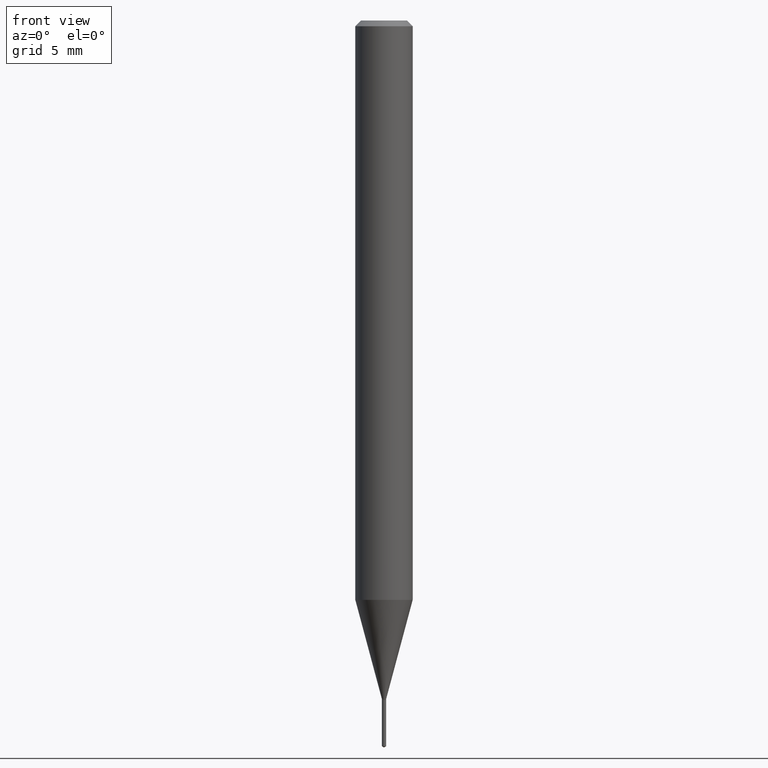
[diagram: clean part render]
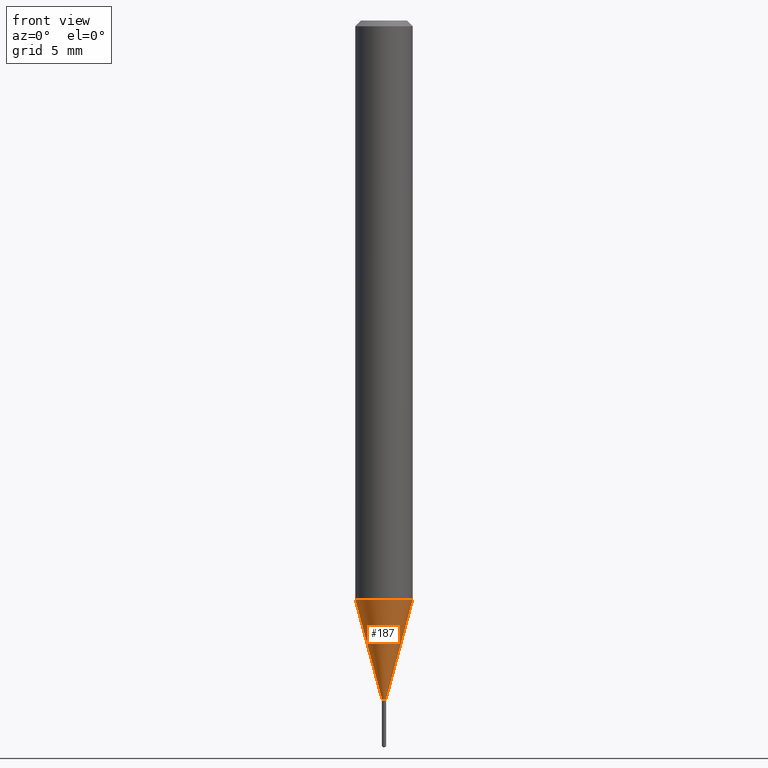
[diagram: same view with one face highlighted and labeled with its STEP entity id]
A machine part, front view. The second image highlights one B-rep face of the part: STEP entity #187.
In plain terms, the highlighted conical surface has half-angle 15 deg.
Its self-contained STEP definition (entity closure, byte-faithful):
#31 = CARTESIAN_POINT ( 'NONE',  ( 0.004349999999999999700, -4.905880429208502600E-15, -1.396399999999999864 ) ) ;
#43 = ORIENTED_EDGE ( 'NONE', *, *, #249, .T. ) ;
#45 = DIRECTION ( 'NONE',  ( -2.445468806185136597E-29, 3.491481338843145583E-15, 1.000000000000000000 ) ) ;
#59 = VECTOR ( 'NONE', #410, 39.37007874015747433 ) ;
#74 = AXIS2_PLACEMENT_3D ( 'NONE', #275, #45, #156 ) ;
#76 = VERTEX_POINT ( 'NONE', #438 ) ;
#85 = ORIENTED_EDGE ( 'NONE', *, *, #358, .F. ) ;
#142 = CONICAL_SURFACE ( 'NONE', #422, 0.004349999999999999700, 0.2617993877991500740 ) ;
#156 = DIRECTION ( 'NONE',  ( 1.000000000000000000, -6.982962677686272233E-15, 0.000000000000000000 ) ) ;
#159 = CIRCLE ( 'NONE', #403, 0.004349999999999999700 ) ;
#187 = ADVANCED_FACE ( 'NONE', ( #329 ), #142, .T. ) ;
#188 = CARTESIAN_POINT ( 'NONE',  ( -0.004349999999999999700, -4.844595932555003539E-15, -1.396399999999999864 ) ) ;
#190 = ORIENTED_EDGE ( 'NONE', *, *, #443, .F. ) ;
#219 = CARTESIAN_POINT ( 'NONE',  ( 0.05905000000000015098, -4.575086387139747161E-15, -1.192256820825982278 ) ) ;
#221 = LINE ( 'NONE', #31, #59 ) ;
#222 = DIRECTION ( 'NONE',  ( 1.000000000000000000, -6.982962677686209913E-15, 0.000000000000000000 ) ) ;
#247 = VERTEX_POINT ( 'NONE', #219 ) ;
#249 = EDGE_CURVE ( 'NONE', #485, #247, #221, .T. ) ;
#275 = CARTESIAN_POINT ( 'NONE',  ( 2.915626864291401219E-29, -4.162742441022373029E-15, -1.192256820825982278 ) ) ;
#289 = CARTESIAN_POINT ( 'NONE',  ( 3.414852640956924410E-29, -4.875504541560567649E-15, -1.396399999999999864 ) ) ;
#306 = DIRECTION ( 'NONE',  ( -2.445468806185136597E-29, 3.491481338843145583E-15, 1.000000000000000000 ) ) ;
#308 = CARTESIAN_POINT ( 'NONE',  ( 3.414852640956924410E-29, -4.875504541560567649E-15, -1.396399999999999864 ) ) ;
#329 = FACE_OUTER_BOUND ( 'NONE', #425, .T. ) ;
#332 = CIRCLE ( 'NONE', #74, 0.05905000000000014404 ) ;
#337 = EDGE_CURVE ( 'NONE', #76, #485, #159, .T. ) ;
#339 = DIRECTION ( 'NONE',  ( -0.2588190451025213501, 5.211531920934551042E-15, 0.9659258262890682012 ) ) ;
#346 = CARTESIAN_POINT ( 'NONE',  ( -0.05905000000000015098, -3.743166955556031959E-15, -1.192256820825982278 ) ) ;
#350 = LINE ( 'NONE', #188, #447 ) ;
#358 = EDGE_CURVE ( 'NONE', #388, #247, #332, .T. ) ;
#388 = VERTEX_POINT ( 'NONE', #346 ) ;
#403 = AXIS2_PLACEMENT_3D ( 'NONE', #308, #306, #457 ) ;
#405 = DIRECTION ( 'NONE',  ( -2.445468806185136597E-29, 3.491481338843145583E-15, 1.000000000000000000 ) ) ;
#410 = DIRECTION ( 'NONE',  ( 0.2588190451025213501, 1.565188264969621968E-15, 0.9659258262890682012 ) ) ;
#422 = AXIS2_PLACEMENT_3D ( 'NONE', #289, #405, #222 ) ;
#425 = EDGE_LOOP ( 'NONE', ( #190, #473, #43, #85 ) ) ;
#438 = CARTESIAN_POINT ( 'NONE',  ( -0.004349999999999999700, -4.845992525090540742E-15, -1.396399999999999864 ) ) ;
#443 = EDGE_CURVE ( 'NONE', #76, #388, #350, .T. ) ;
#447 = VECTOR ( 'NONE', #339, 39.37007874015747433 ) ;
#457 = DIRECTION ( 'NONE',  ( 1.000000000000000000, -6.982962677686209913E-15, 0.000000000000000000 ) ) ;
#470 = CARTESIAN_POINT ( 'NONE',  ( 0.004349999999999999700, -4.905880429208502600E-15, -1.396399999999999864 ) ) ;
#473 = ORIENTED_EDGE ( 'NONE', *, *, #337, .T. ) ;
#485 = VERTEX_POINT ( 'NONE', #470 ) ;